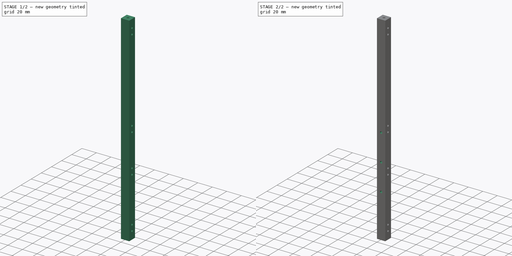
[diagram: build sequence overview — one tinted view per stage of 2, left to right]
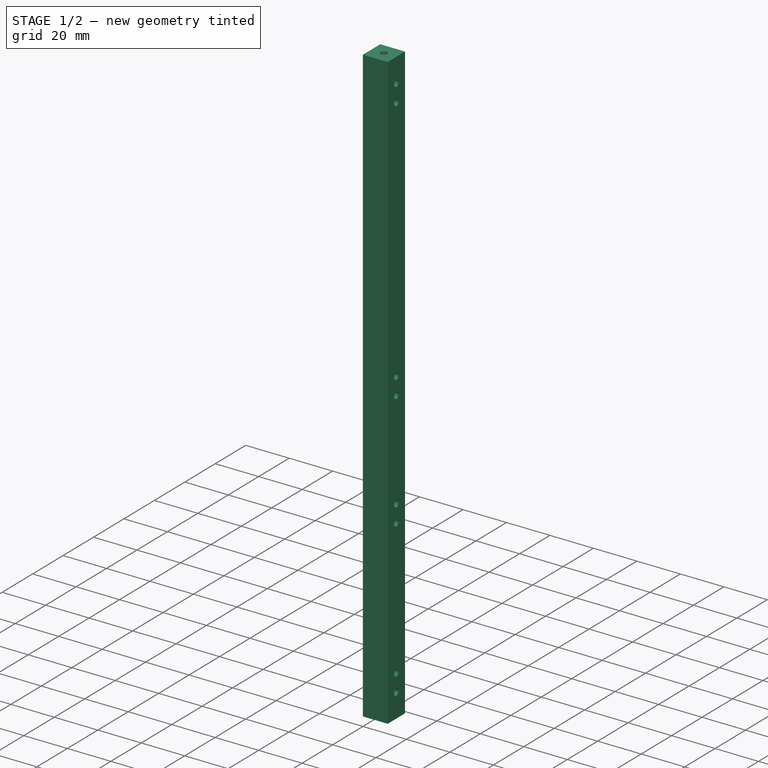
[diagram: stage 1 of 2 — iso view after this stage's code; geometry added in this stage tinted green]
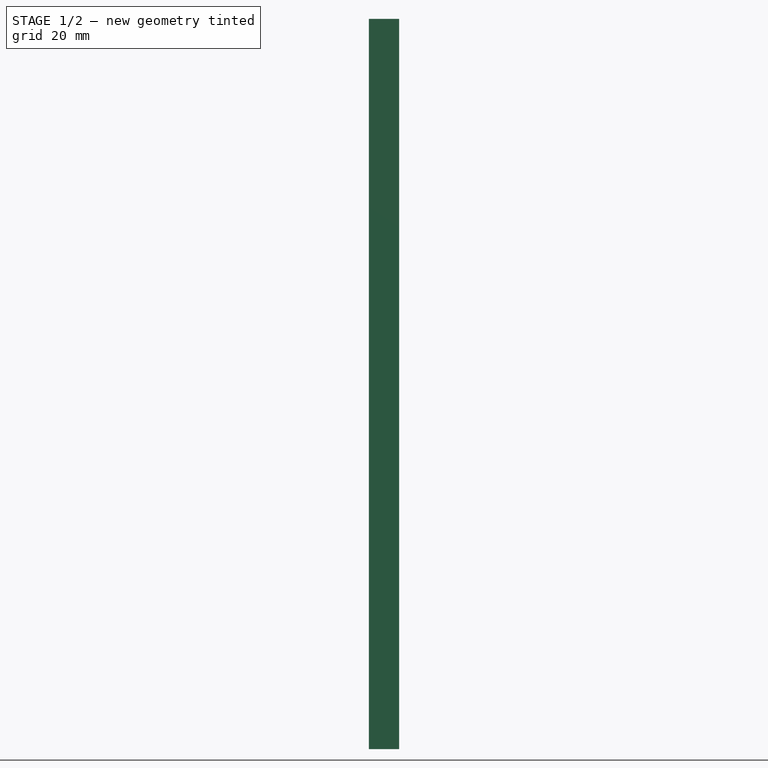
[diagram: stage 1 of 2 — front view after this stage's code; geometry added in this stage tinted green]
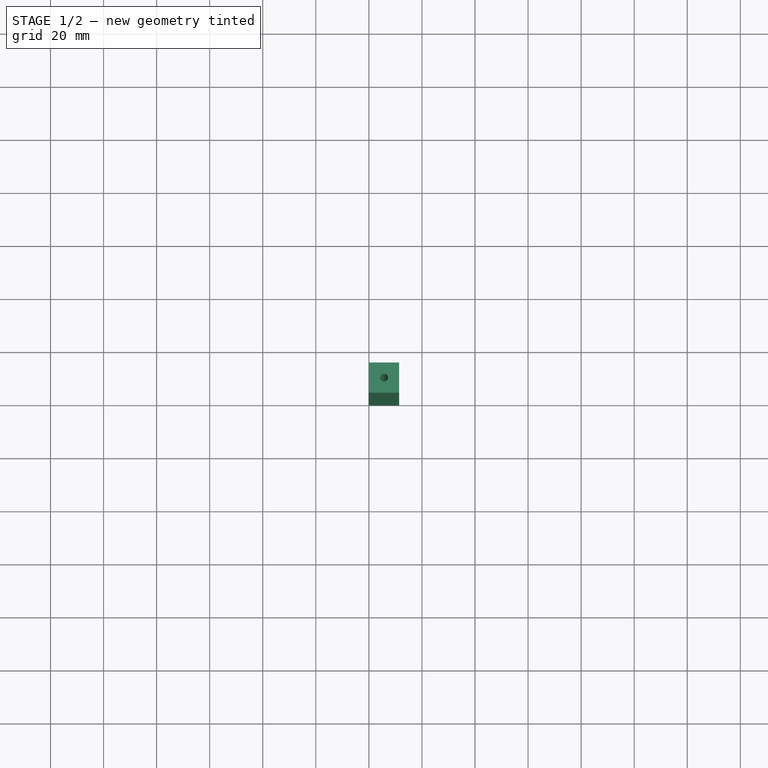
[diagram: stage 1 of 2 — top view after this stage's code; geometry added in this stage tinted green]
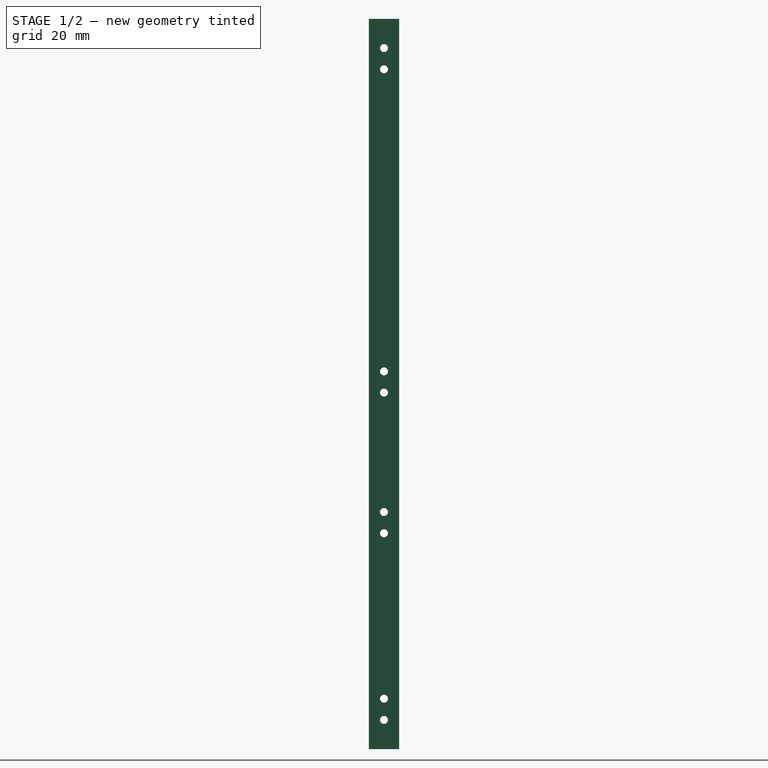
[diagram: stage 1 of 2 — right view after this stage's code; geometry added in this stage tinted green]
FCSTD DOCUMENT  (FreeCAD 0.16R6707 (Git))
Label: profile_petit_ar
License: All rights reserved
LicenseURL: http://en.wikipedia.org/wiki/All_rights_reserved
objects: Sketcher::SketchObject×3, PartDesign::Pocket×2, PartDesign::Pad×1
note: 9 computed .brp shape members not serialized (recipe doc carries the construction recipe); baked Part::Feature solids carry a one-line shape summary decoded from their .brp

FEATURE [Sketcher::SketchObject] Sketch
  sketch-geometry (5):
    g0: LineSegment StartX=0 StartY=0 StartZ=0 EndX=11.4 EndY=0 EndZ=0
    g1: LineSegment StartX=11.4 StartY=0 StartZ=0 EndX=11.4 EndY=11.4 EndZ=0
    g2: LineSegment StartX=11.4 StartY=11.4 StartZ=0 EndX=0 EndY=11.4 EndZ=0
    g3: LineSegment StartX=0 StartY=11.4 StartZ=0 EndX=0 EndY=0 EndZ=0
    g4: Circle CenterX=5.7 CenterY=5.7 CenterZ=0 NormalX=0 NormalY=0 NormalZ=1 Radius=1.5
  constraints (14):
    c: Coincident(g0,g1)
    c: Coincident(g1,g2)
    c: Coincident(g2,g3)
    c: Coincident(g3,g0)
    c: Horizontal(g0)
    c: Horizontal(g2)
    c: Vertical(g1)
    c: Vertical(g3)
    c: Coincident(g0,g-1)
    c: Distance(g3) = 11.4
    c: Distance(g2) = 11.4
    c: DistanceY(g4) = 5.7
    c: DistanceX(g4) = 5.7
    c: Radius(g4) = 1.5
FEATURE [PartDesign::Pad] Pad
  Length = 275.2
  Length2 = 100
  Sketch = -> Sketch
  Type = 0
FEATURE [Sketcher::SketchObject] Sketch001
  Placement = pos=(11.4,0,0) rot=(0.57735,0.57735,0.57735;2.0944rad)
  Support = -> Pad [Face2]
  sketch-geometry (16):
    g0: GeomPoint [constr] X=5.7 Y=153.35 Z=0
    g1: GeomPoint [constr] X=5.7 Y=142.35 Z=0
    g2: GeomPoint [constr] X=5.7 Y=134.35 Z=0
    g3: GeomPoint [constr] X=5.7 Y=19 Z=0
    g4: GeomPoint [constr] X=5.7 Y=11 Z=0
    g5: Circle CenterX=5.7 CenterY=142.35 CenterZ=0 NormalX=0 NormalY=0 NormalZ=1 Radius=1.5
    g6: Circle CenterX=5.7 CenterY=134.35 CenterZ=0 NormalX=0 NormalY=0 NormalZ=1 Radius=1.5
    g7: Circle CenterX=5.7 CenterY=19 CenterZ=0 NormalX=0 NormalY=0 NormalZ=1 Radius=1.5
    g8: Circle CenterX=5.7 CenterY=11 CenterZ=0 NormalX=0 NormalY=0 NormalZ=1 Radius=1.5
    g9: GeomPoint [constr] X=5.7 Y=89.35 Z=0
    g10: GeomPoint [constr] X=5.7 Y=81.35 Z=0
    g11: Circle CenterX=5.7 CenterY=89.35 CenterZ=0 NormalX=0 NormalY=0 NormalZ=1 Radius=1.5
    g12: Circle CenterX=5.7 CenterY=81.35 CenterZ=0 NormalX=0 NormalY=0 NormalZ=1 Radius=1.5
    g13: GeomPoint [constr] X=5.7 Y=275.2 Z=0
    g14: Circle CenterX=5.7 CenterY=264.2 CenterZ=0 NormalX=0 NormalY=0 NormalZ=1 Radius=1.5
    g15: Circle CenterX=5.7 CenterY=256.2 CenterZ=0 NormalX=0 NormalY=0 NormalZ=1 Radius=1.5
  constraints (34):
    c: DistanceY(g4) = 11
    c: DistanceY(g0) = 153.35
    c: DistanceY(g1,g0) = 11
    c: DistanceY(g2,g1) = 8
    c: DistanceY(g4,g3) = 8
    c: DistanceX(g0) = 5.7
    c: DistanceX(g4) = 5.7
    c: DistanceX(g3,g4) = 0
    c: DistanceX(g1,g0) = 0
    c: DistanceX(g2,g1) = 0
    c: Coincident(g5,g1)
    c: Coincident(g6,g2)
    c: Coincident(g7,g3)
    c: Coincident(g8,g4)
    c: Radius(g5) = 1.5
    c: Equal(g5,g6)
    c: Equal(g5,g7)
    c: Equal(g5,g8)
    c: DistanceY(g9) = 89.35
    c: DistanceX(g9,g10) = 0
    c: DistanceY(g10,g9) = 8
    c: DistanceX(g9) = 5.7
    c: Coincident(g11,g9)
    c: Coincident(g12,g10)
    c: Radius(g12) = 1.5
    c: Equal(g12,g11)
    c: DistanceY(g13) = 275.2
    c: DistanceX(g13) = 5.7
    c: Radius(g14) = 1.5
    c: Equal(g14,g15)
    c: DistanceX(g14,g15) = 0
    c: DistanceX(g14,g13) = 0
    c: DistanceY(g14,g13) = 11
    c: DistanceY(g15,g14) = 8
FEATURE [PartDesign::Pocket] Pocket
  Length = 5
  Sketch = -> Sketch001
  Type = 1
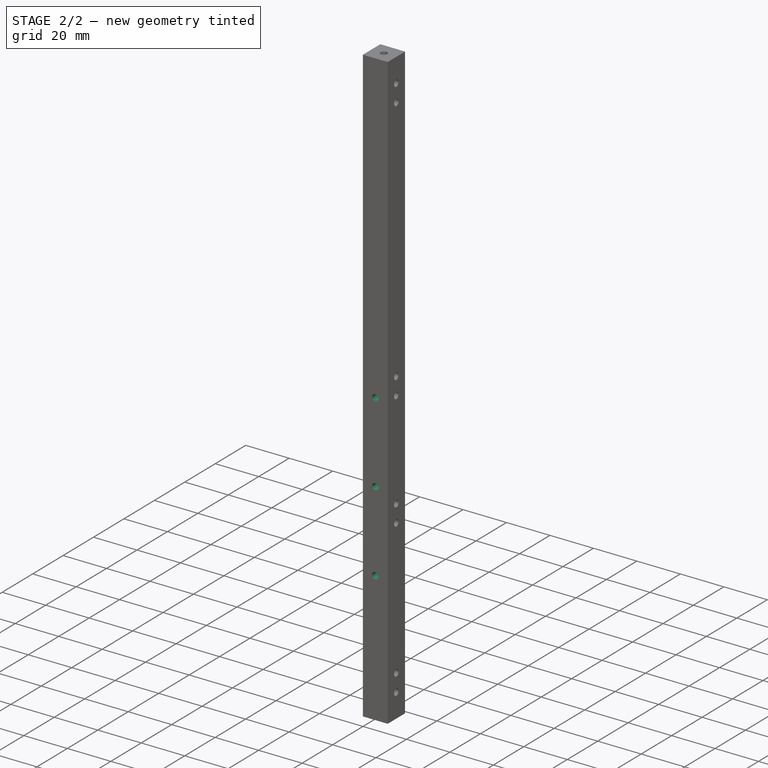
[diagram: stage 2 of 2 — iso view after this stage's code; geometry added in this stage tinted green]
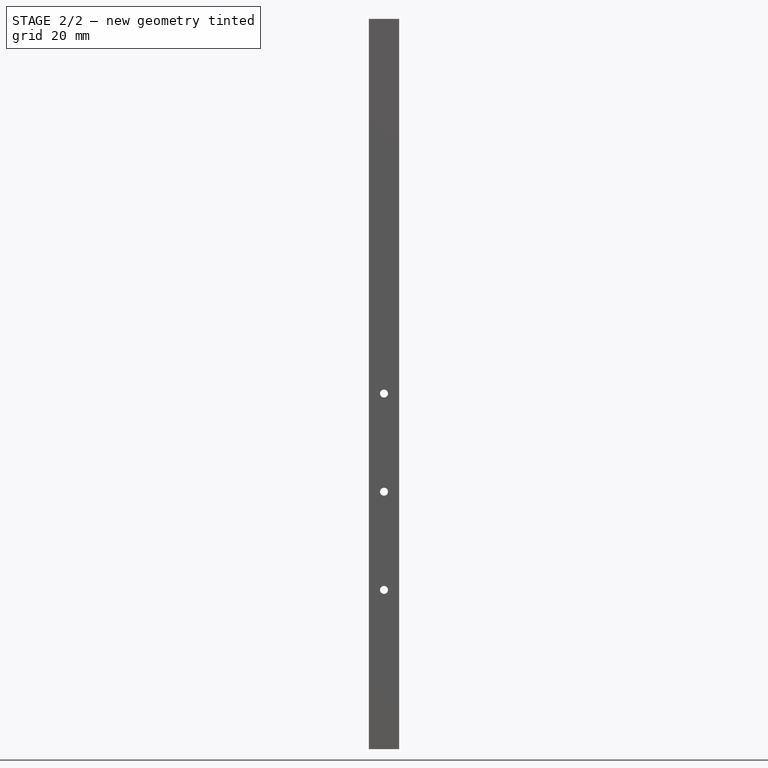
[diagram: stage 2 of 2 — front view after this stage's code; geometry added in this stage tinted green]
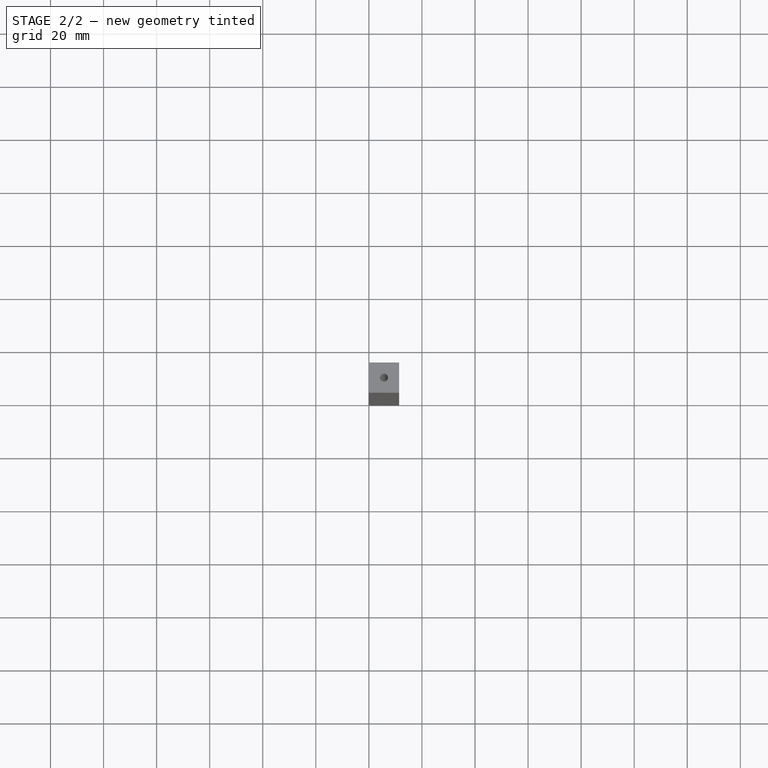
[diagram: stage 2 of 2 — top view after this stage's code; geometry added in this stage tinted green]
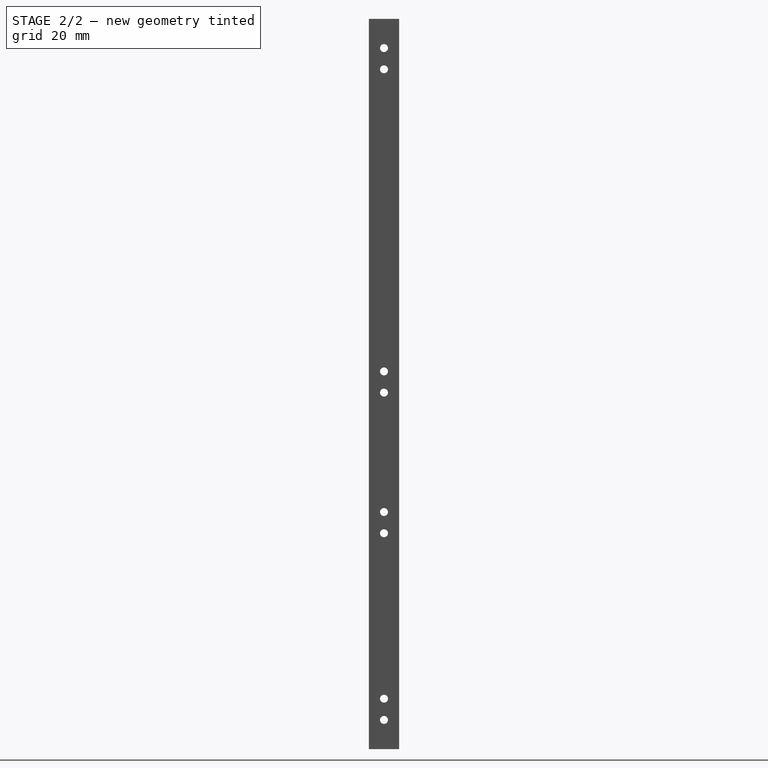
[diagram: stage 2 of 2 — right view after this stage's code; geometry added in this stage tinted green]
FEATURE [Sketcher::SketchObject] Sketch002
  Placement = pos=(0,11.4,0) rot=(0,0.707107,0.707107;3.14159rad)
  Support = -> Pocket [Face6]
  sketch-geometry (3):
    g0: Circle CenterX=-5.7 CenterY=60 CenterZ=0 NormalX=0 NormalY=0 NormalZ=1 Radius=1.5
    g1: Circle CenterX=-5.7 CenterY=97 CenterZ=0 NormalX=0 NormalY=0 NormalZ=1 Radius=1.5
    g2: Circle CenterX=-5.7 CenterY=134 CenterZ=0 NormalX=0 NormalY=0 NormalZ=1 Radius=1.5
  constraints (9):
    c: Radius(g2) = 1.5
    c: Equal(g2,g1)
    c: Equal(g2,g0)
    c: DistanceY(g0) = 60
    c: DistanceX(g1,g0) = 0
    c: DistanceX(g0) = -5.7
    c: DistanceY(g0,g1) = 37
    c: DistanceX(g2,g1) = 0
    c: DistanceY(g1,g2) = 37
FEATURE [PartDesign::Pocket] Pocket001
  Length = 5
  Sketch = -> Sketch002
  Type = 1
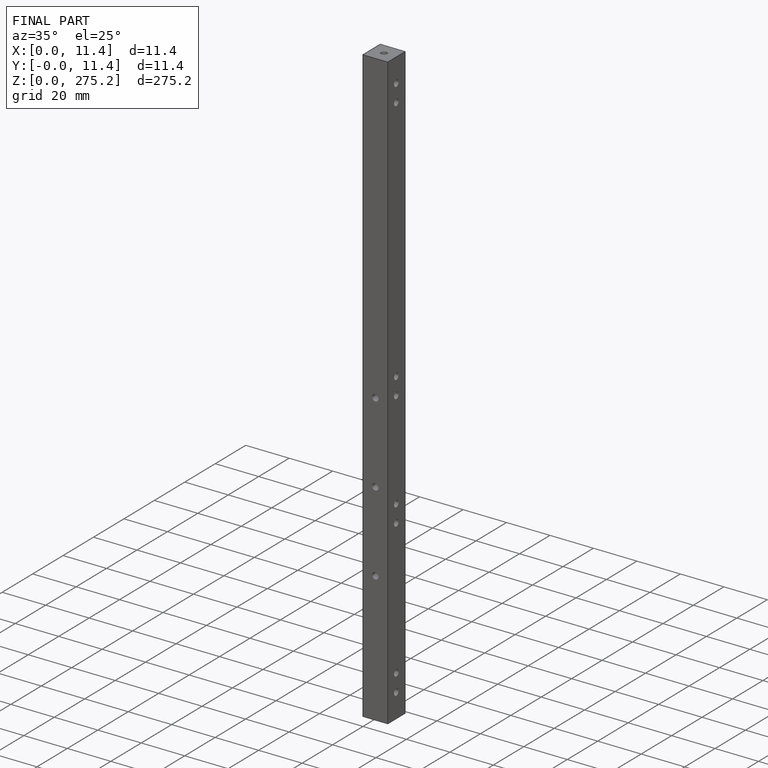
[diagram: finished part — iso view with bounding-box wireframe]
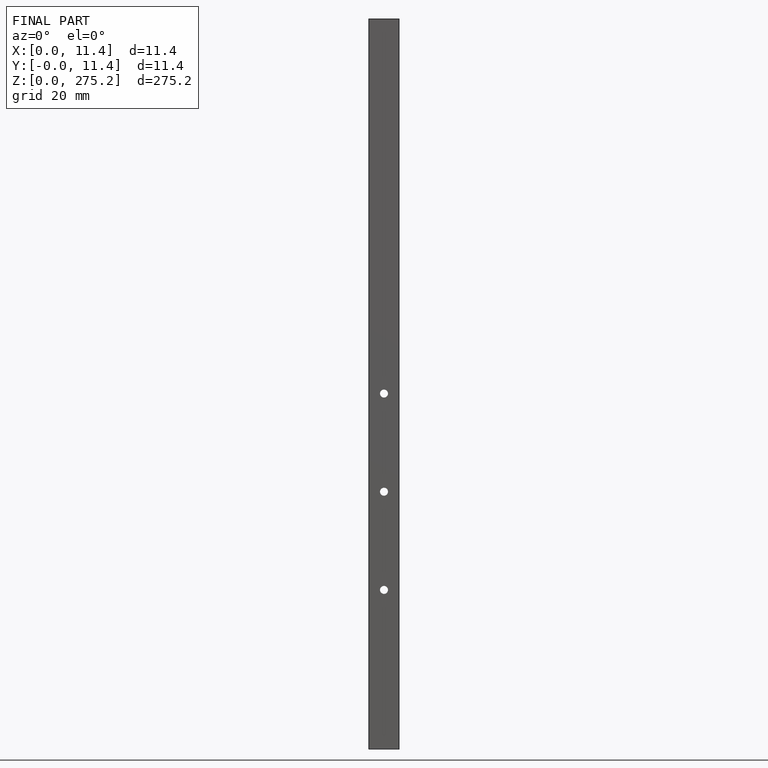
[diagram: finished part — front view with bounding-box wireframe]
